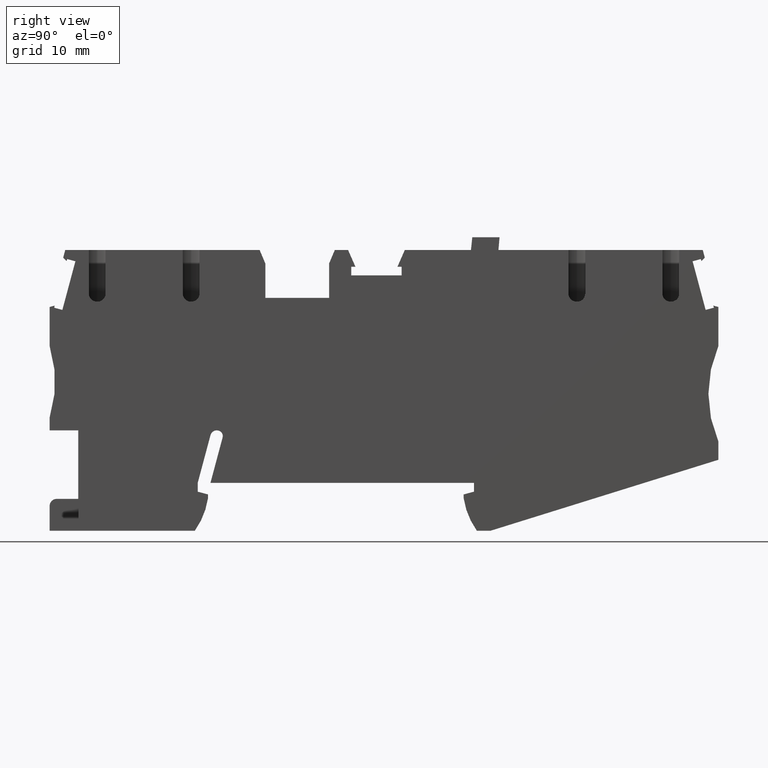
[diagram: clean part render]
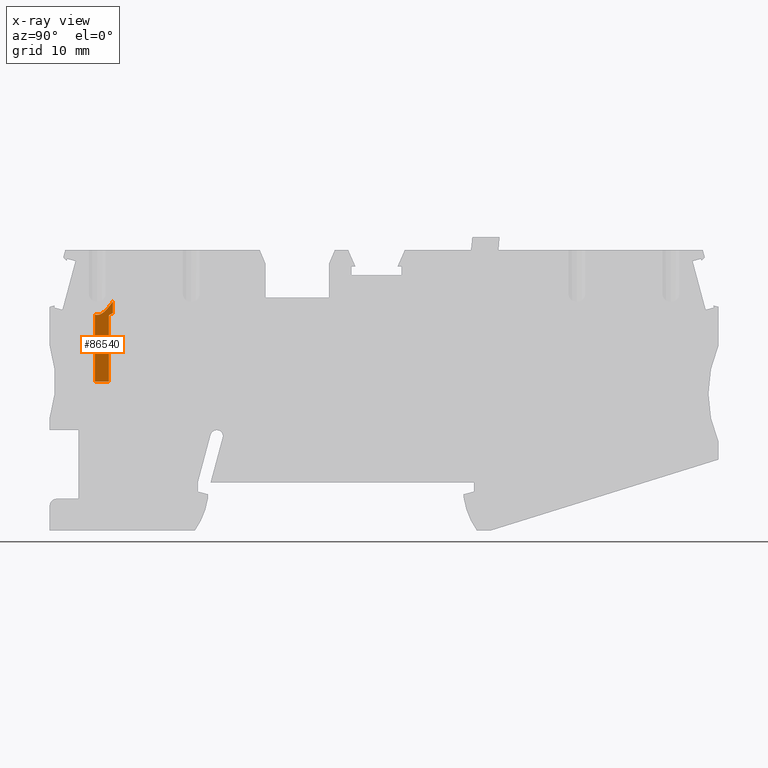
[diagram: x-ray — body ghosted, one internal face saturated and labeled with its STEP entity id]
A machine part, right view, then the same camera in x-ray: the body is ghosted and one INTERNAL B-rep face — a face not visible from any outside direction — is saturated and labeled: STEP entity #86540.
In plain terms, the highlighted planar face has unit normal (1, -0, 0).
Its self-contained STEP definition (entity closure, byte-faithful):
#75110=CARTESIAN_POINT('',(-16.3428330870502,-15.644522446653,
51.2700000000041));
#75120=DIRECTION('',(4.98260998294052E-13,1.,0.));
#75130=DIRECTION('',(-1.,4.98948105054353E-13,-9.68341858770837E-17));
#75140=AXIS2_PLACEMENT_3D('',#75110,#75120,#75130);
#75150=CONICAL_SURFACE('',#75140,2.4,0.523598775598299);
#78160=CARTESIAN_POINT('',(-14.4303739371615,-17.0682843751333,
49.8200000000041));
#78170=VERTEX_POINT('',#78160);
#78200=CARTESIAN_POINT('',(-14.4303739371554,-6.99021844665449,
49.8200000000041));
#78210=DIRECTION('',(-6.00366978353861E-13,-1.,5.0738306641262E-18));
#78220=VECTOR('',#78210,1.);
#78230=LINE('',#78200,#78220);
#78240=CARTESIAN_POINT('',(-14.4303739371606,-15.6445224466526,
49.8200000000041));
#78250=VERTEX_POINT('',#78240);
#78260=EDGE_CURVE('',#78250,#78170,#78230,.T.);
#78620=CARTESIAN_POINT('',(-14.9183199424407,-17.350000132631,
49.8200000000041));
#78630=VERTEX_POINT('',#78620);
#78660=CARTESIAN_POINT('',(15.6638477386941,0.306622610456387,
49.8200000000042));
#78670=DIRECTION('',(0.866025403784661,0.499999999999616,
8.13239495922678E-17));
#78680=VECTOR('',#78670,1.);
#78690=LINE('',#78660,#78680);
#78700=EDGE_CURVE('',#78630,#78170,#78690,.T.);
#80090=CARTESIAN_POINT('',(-16.4428330870501,-15.644522446653,
51.2700000000041));
#80100=DIRECTION('',(4.74330795974612E-13,1.,0.));
#80110=DIRECTION('',(-1.,4.83071915802213E-13,-9.68341858770836E-17));
#80120=AXIS2_PLACEMENT_3D('',#80090,#80100,#80110);
#80130=CONICAL_SURFACE('',#80120,2.4,0.523598775598299);
#80620=CARTESIAN_POINT('',(-16.4428330870509,-17.2899707138434,
49.8200000000041));
#80630=VERTEX_POINT('',#80620);
#80660=CARTESIAN_POINT('',(-17.0928330870459,-6.99021844665302,
49.8200000000041));
#80670=DIRECTION('',(-9.68341858770811E-17,5.07383066418434E-18,1.));
#80680=DIRECTION('',(-1.,6.1618765645477E-13,-9.68341858770843E-17));
#80690=AXIS2_PLACEMENT_3D('',#80660,#80670,#80680);
#80700=PLANE('',#80690);
#80710=CARTESIAN_POINT('',(-16.6678330870497,-17.2599143338452,
49.8200000000041));
#80720=CARTESIAN_POINT('',(-16.6496318152353,-17.2647483740605,
49.8200000000041));
#80730=CARTESIAN_POINT('',(-16.6312259018687,-17.2690630127531,
49.8200000000042));
#80740=CARTESIAN_POINT('',(-16.6126594603658,-17.2728038427049,
49.8200000000042));
#80750=CARTESIAN_POINT('',(-16.5940932698763,-17.2765446220817,
49.8200000000042));
#80760=CARTESIAN_POINT('',(-16.575367784696,-17.2797110188825,
49.8200000000042));
#80770=CARTESIAN_POINT('',(-16.5565381079349,-17.2822606885941,
49.8200000000042));
#80780=CARTESIAN_POINT('',(-16.5377085548122,-17.2848103415641,
49.8200000000042));
#80790=CARTESIAN_POINT('',(-16.5187764706872,-17.2867428183627,
49.8200000000041));
#80800=CARTESIAN_POINT('',(-16.499803782503,-17.2880329619866,
49.8200000000041));
#80810=CARTESIAN_POINT('',(-16.4808310830287,-17.2893231063782,
49.8200000000041));
#80820=CARTESIAN_POINT('',(-16.4618197265596,-17.2899707138434,
49.8200000000041));
#80830=CARTESIAN_POINT('',(-16.4428330870511,-17.2899707138434,
49.8200000000041));
#80840=B_SPLINE_CURVE_WITH_KNOTS('',3,(#80710,#80720,#80730,#80740,
#80750,#80760,#80770,#80780,#80790,#80800,#80810,#80820,#80830),
.UNSPECIFIED.,.F.,.F.,(4,3,3,3,4),(0.,0.0566679519479118,
0.113590285198098,0.17062806671569,0.227642657599247),.UNSPECIFIED.);
#80850=SURFACE_CURVE('',#80840,(#80700,#80130),.CURVE_3D.);
#80860=CARTESIAN_POINT('',(-16.6678330870521,-17.2599143338453,
49.8200000000041));
#80870=VERTEX_POINT('',#80860);
#80880=EDGE_CURVE('',#80870,#80630,#80850,.T.);
#85280=CARTESIAN_POINT('',(-17.092833087046,-6.99021844665304,
49.8200000000041));
#85290=DIRECTION('',(-9.68341858770811E-17,5.07383066418434E-18,1.));
#85300=DIRECTION('',(-1.,6.00353100566053E-13,-9.68341858770842E-17));
#85310=AXIS2_PLACEMENT_3D('',#85280,#85290,#85300);
#85320=PLANE('',#85310);
#85330=CARTESIAN_POINT('',(-16.6678330870688,-44.9428586140106,
49.8200000000041));
#85340=DIRECTION('',(-6.00339222778246E-13,-1.,5.07383066412621E-18));
#85350=VECTOR('',#85340,1.);
#85360=LINE('',#85330,#85350);
#85370=CARTESIAN_POINT('',(-16.6678330870572,-25.6999999999991,
49.8200000000041));
#85380=VERTEX_POINT('',#85370);
#85390=EDGE_CURVE('',#80870,#85380,#85360,.T.);
#85400=ORIENTED_EDGE('',*,*,#85390,.T.);
#85410=ORIENTED_EDGE('',*,*,#80880,.F.);
#85420=CARTESIAN_POINT('',(148.304479364629,-17.2899707139256,
49.8200000000042));
#85430=DIRECTION('',(-1.,4.98948105054353E-13,-9.68341858770837E-17));
#85440=VECTOR('',#85430,1.);
#85450=LINE('',#85420,#85440);
#85460=CARTESIAN_POINT('',(-16.3428330870528,-17.2899707138434,
49.8200000000041));
#85470=VERTEX_POINT('',#85460);
#85480=EDGE_CURVE('',#85470,#80630,#85450,.T.);
#85490=ORIENTED_EDGE('',*,*,#85480,.T.);
#85500=CARTESIAN_POINT('',(-14.4303739371485,-15.6445224466386,
49.8200000000041));
#85510=CARTESIAN_POINT('',(-14.4621120451833,-15.6883273359395,
49.8200000000041));
#85520=CARTESIAN_POINT('',(-14.4940393283425,-15.7319961288886,
49.8200000000041));
#85530=CARTESIAN_POINT('',(-14.5261794777477,-15.7755046176871,
49.8200000000041));
#85540=CARTESIAN_POINT('',(-14.5583196324298,-15.8190131136288,
49.8200000000041));
#85550=CARTESIAN_POINT('',(-14.5906726199271,-15.8623614501501,
49.8200000000041));
#85560=CARTESIAN_POINT('',(-14.623267835275,-15.9055216487604,
49.8200000000041));
#85570=CARTESIAN_POINT('',(-14.6558630472825,-15.9486818429477,
49.8200000000041));
#85580=CARTESIAN_POINT('',(-14.68870045904,-15.9916541163043,
49.8200000000041));
#85590=CARTESIAN_POINT('',(-14.7218165058556,-16.0344051934216,
49.8200000000041));
#85600=CARTESIAN_POINT('',(-14.7549325323573,-16.0771562443145,
49.8200000000041));
#85610=CARTESIAN_POINT('',(-14.7883271786264,-16.1196864233817,
49.8200000000041));
#85620=CARTESIAN_POINT('',(-14.8220455926274,-16.1619548863344,
49.8200000000041));
#85630=CARTESIAN_POINT('',(-14.8557639569123,-16.2042232869643,
49.8200000000041));
#85640=CARTESIAN_POINT('',(-14.8898061013914,-16.2462304584934,
49.8200000000042));
#85650=CARTESIAN_POINT('',(-14.9242280239015,-16.2879246430821,
49.8200000000042));
#85660=CARTESIAN_POINT('',(-14.958639085738,-16.3296056724809,
49.8200000000042));
#85670=CARTESIAN_POINT('',(-14.9934954054097,-16.3710539187204,
49.8200000000041));
#85680=CARTESIAN_POINT('',(-15.0288396553245,-16.4121618330305,
49.8200000000041));
#85690=CARTESIAN_POINT('',(-15.0641827917301,-16.4532684522491,
49.8200000000041));
#85700=CARTESIAN_POINT('',(-15.100008546779,-16.4940292131554,
49.8200000000041));
#85710=CARTESIAN_POINT('',(-15.1363666252613,-16.5343074164217,
49.8200000000041));
#85720=CARTESIAN_POINT('',(-15.1727248349047,-16.5745857649909,
49.8200000000041));
#85730=CARTESIAN_POINT('',(-15.2096154457841,-16.6143829048073,
49.8200000000041));
#85740=CARTESIAN_POINT('',(-15.2471185850619,-16.6535449566913,
49.8200000000041));
#85750=CARTESIAN_POINT('',(-15.2658702805002,-16.6731261139974,
49.8200000000041));
#85760=CARTESIAN_POINT('',(-15.2847758092444,-16.6925483589358,
49.8200000000041));
#85770=CARTESIAN_POINT('',(-15.3038489093268,-16.7117899762026,
49.8200000000041));
#85780=CARTESIAN_POINT('',(-15.3229220108769,-16.73103159495,
49.8200000000041));
#85790=CARTESIAN_POINT('',(-15.3421627229734,-16.7500926978166,
49.8200000000041));
#85800=CARTESIAN_POINT('',(-15.361587579054,-16.7689490029771,
49.8200000000041));
#85810=CARTESIAN_POINT('',(-15.3810124249474,-16.7878052982485,
49.8200000000041));
#85820=CARTESIAN_POINT('',(-15.4006214803267,-16.8064569462893,
49.8200000000041));
#85830=CARTESIAN_POINT('',(-15.4204343176991,-16.8248761478881,
49.8200000000041));
#85840=CARTESIAN_POINT('',(-15.4402471266944,-16.843295323106,
49.8200000000041));
#85850=CARTESIAN_POINT('',(-15.4602638221166,-16.8614822518554,
49.8200000000041));
#85860=CARTESIAN_POINT('',(-15.480507183193,-16.8794043622673,
49.8200000000041));
#85870=CARTESIAN_POINT('',(-15.5007504891034,-16.8973264238388,
49.8200000000041));
#85880=CARTESIAN_POINT('',(-15.5212206219176,-16.9149839288347,
49.8200000000041));
#85890=CARTESIAN_POINT('',(-15.5419436015224,-16.9323379204139,
49.8200000000041));
#85900=CARTESIAN_POINT('',(-15.5626664880374,-16.949691834037,
49.8200000000041));
#85910=CARTESIAN_POINT('',(-15.5836424640642,-16.9667425702502,
49.8200000000041));
#85920=CARTESIAN_POINT('',(-15.6049006041635,-16.9834427794429,
49.8200000000041));
#85930=CARTESIAN_POINT('',(-15.6261553943387,-17.0001403569644,
49.8200000000041));
#85940=CARTESIAN_POINT('',(-15.6477520452471,-17.0165340219098,
49.8200000000041));
#85950=CARTESIAN_POINT('',(-15.669684565484,-17.0325300133974,
49.8200000000041));
#85960=CARTESIAN_POINT('',(-15.6916170472782,-17.0485259768477,
49.8200000000041));
#85970=CARTESIAN_POINT('',(-15.713885257633,-17.0641242089802,
49.8200000000041));
#85980=CARTESIAN_POINT('',(-15.7364865977149,-17.0792268704766,
49.8200000000041));
#85990=CARTESIAN_POINT('',(-15.759087961315,-17.0943295476884,
49.8200000000041));
#86000=CARTESIAN_POINT('',(-15.7820227322612,-17.1089368928002,
49.8200000000041));
#86010=CARTESIAN_POINT('',(-15.8052924756543,-17.1229467225643,
49.8200000000041));
#86020=CARTESIAN_POINT('',(-15.8285622121837,-17.136956548196,
49.8200000000041));
#86030=CARTESIAN_POINT('',(-15.8521673264073,-17.1503691311325,
49.8200000000041));
#86040=CARTESIAN_POINT('',(-15.8761127476934,-17.1630767786063,
49.8200000000041));
#86050=CARTESIAN_POINT('',(-15.9000581137632,-17.1757843967773,
49.8200000000041));
#86060=CARTESIAN_POINT('',(-15.9243443235065,-17.1877873350806,
49.8200000000156));
#86070=CARTESIAN_POINT('',(-15.9489779390372,-17.1989714007939,
49.8200000000156));
#86080=CARTESIAN_POINT('',(-15.9612947500173,-17.2045634351101,
49.8200000000156));
#86090=CARTESIAN_POINT('',(-15.9736984697567,-17.2099506661617,
49.8200000000042));
#86100=CARTESIAN_POINT('',(-15.9861898890374,-17.2151182042938,
49.8200000000042));
#86110=CARTESIAN_POINT('',(-15.9986764968445,-17.2202837519817,
49.8200000000042));
#86120=CARTESIAN_POINT('',(-16.0112665161269,-17.2252365823089,
49.8200000000043));
#86130=CARTESIAN_POINT('',(-16.0239799872184,-17.2299658416815,
49.8200000000043));
#86140=CARTESIAN_POINT('',(-16.0494018614072,-17.2394224751933,
49.8200000000043));
#86150=CARTESIAN_POINT('',(-16.0752739355268,-17.2479648277879,
49.820000000008));
#86160=CARTESIAN_POINT('',(-16.1014872949268,-17.2554193704012,
49.820000000008));
#86170=CARTESIAN_POINT('',(-16.1145935830073,-17.2591465303393,
49.820000000008));
#86180=CARTESIAN_POINT('',(-16.1277842252475,-17.2626019953145,
49.8200000000074));
#86190=CARTESIAN_POINT('',(-16.1410429307889,-17.265767394069,
49.8200000000074));
#86200=CARTESIAN_POINT('',(-16.1543016276168,-17.2689327907433,
49.8200000000074));
#86210=CARTESIAN_POINT('',(-16.1676281897293,-17.2718080395026,
49.8200000000057));
#86220=CARTESIAN_POINT('',(-16.1810051969312,-17.2743779436605,
49.8200000000057));
#86230=CARTESIAN_POINT('',(-16.1943822148466,-17.2769478498767,
49.8200000000057));
#86240=CARTESIAN_POINT('',(-16.2078094344506,-17.2792123416783,
49.8200000000045));
#86250=CARTESIAN_POINT('',(-16.2212689303431,-17.2811599698009,
49.8200000000045));
#86260=CARTESIAN_POINT('',(-16.2347284614745,-17.2831076030226,
49.8200000000045));
#86270=CARTESIAN_POINT('',(-16.2482199892945,-17.2847383254113,
49.8200000000042));
#86280=CARTESIAN_POINT('',(-16.2617259410871,-17.2860447928293,
49.8200000000042));
#86290=CARTESIAN_POINT('',(-16.2887510493044,-17.2886590049853,
49.8200000000042));
#86300=CARTESIAN_POINT('',(-16.3157762337736,-17.2899707142668,
49.8200000000041));
#86310=CARTESIAN_POINT('',(-16.3428331001483,-17.2899707138435,
49.8200000000041));
#86320=B_SPLINE_CURVE_WITH_KNOTS('',3,(#85500,#85510,#85520,#85530,
#85540,#85550,#85560,#85570,#85580,#85590,#85600,#85610,#85620,#85630,
#85640,#85650,#85660,#85670,#85680,#85690,#85700,#85710,#85720,#85730,
#85740,#85750,#85760,#85770,#85780,#85790,#85800,#85810,#85820,#85830,
#85840,#85850,#85860,#85870,#85880,#85890,#85900,#85910,#85920,#85930,
#85940,#85950,#85960,#85970,#85980,#85990,#86000,#86010,#86020,#86030,
#86040,#86050,#86060,#86070,#86080,#86090,#86100,#86110,#86120,#86130,
#86140,#86150,#86160,#86170,#86180,#86190,#86200,#86210,#86220,#86230,
#86240,#86250,#86260,#86270,#86280,#86290,#86300,#86310),.UNSPECIFIED.,
.F.,.F.,(4,3,3,3,3,3,3,3,3,3,3,3,3,3,3,3,3,3,3,3,3,3,3,3,3,3,3,4),(0.,
0.16228129239701,0.324549045817275,0.486793113475478,0.649012843415098,
0.811217181854173,0.973634399540902,1.13637000943961,1.29911368753201,
1.38042159408872,1.46166882263013,1.5428540434985,1.62398603160891,
1.70508356314846,1.78617503090562,1.86745985126935,1.94897084102659,
2.0304993957764,2.11190912975852,2.19314861620019,2.2337146912133,
2.27431916290025,2.35592022113914,2.39681012305177,2.4376928912851,
2.47852742738196,2.51928206517571,2.60051565590402),.UNSPECIFIED.);
#86330=SURFACE_CURVE('',#86320,(#75150,#85320),.CURVE_3D.);
#86340=EDGE_CURVE('',#78250,#85470,#86330,.T.);
#86350=ORIENTED_EDGE('',*,*,#86340,.T.);
#86360=ORIENTED_EDGE('',*,*,#78260,.F.);
#86370=ORIENTED_EDGE('',*,*,#78700,.T.);
#86380=CARTESIAN_POINT('',(-14.9183199424342,1.68398628375144E-12,
49.8200000000041));
#86390=DIRECTION('',(3.76448872074775E-13,1.,-5.07383066414789E-18));
#86400=VECTOR('',#86390,1.);
#86410=LINE('',#86380,#86400);
#86420=CARTESIAN_POINT('',(-14.9183199424439,-25.6999999999997,
49.8200000000041));
#86430=VERTEX_POINT('',#86420);
#86440=EDGE_CURVE('',#86430,#78630,#86410,.T.);
#86450=ORIENTED_EDGE('',*,*,#86440,.T.);
#86460=CARTESIAN_POINT('',(15.6638477386844,-25.7000000000112,
49.8200000000042));
#86470=DIRECTION('',(-1.,3.74866804264684E-13,-9.6834185877083E-17));
#86480=VECTOR('',#86470,1.);
#86490=LINE('',#86460,#86480);
#86500=EDGE_CURVE('',#86430,#85380,#86490,.T.);
#86510=ORIENTED_EDGE('',*,*,#86500,.F.);
#86520=EDGE_LOOP('',(#86510,#86450,#86370,#86360,#86350,#85490,#85410,
#85400));
#86530=FACE_OUTER_BOUND('',#86520,.T.);
#86540=ADVANCED_FACE('',(#86530),#85320,.T.);